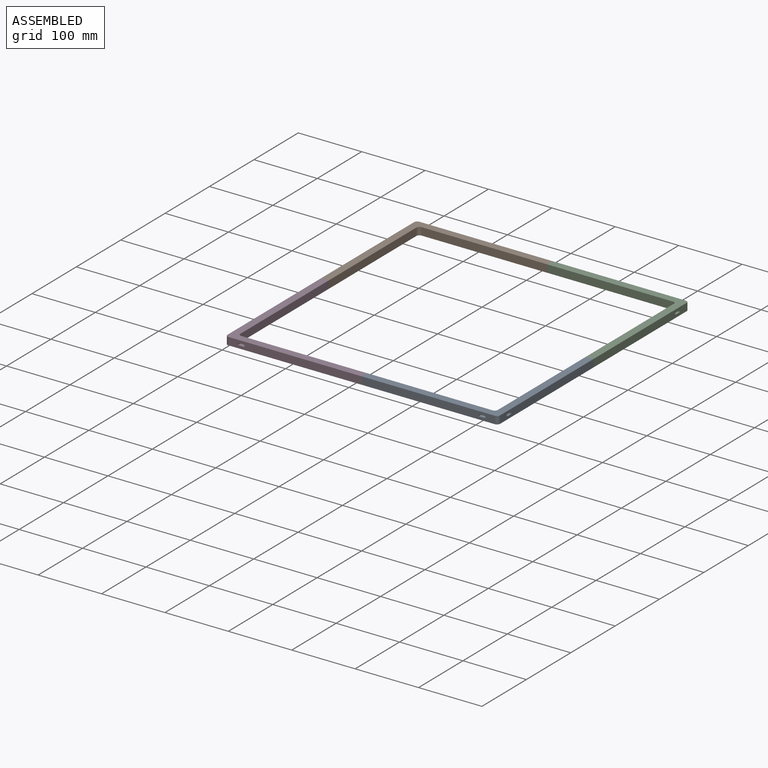
[diagram: assembled view]
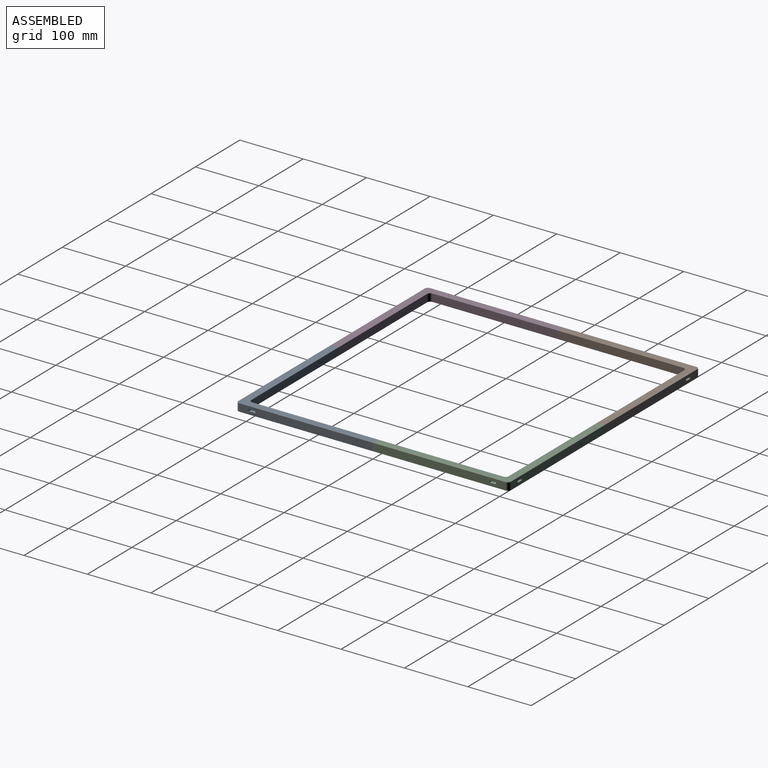
[diagram: assembled view, second angle]
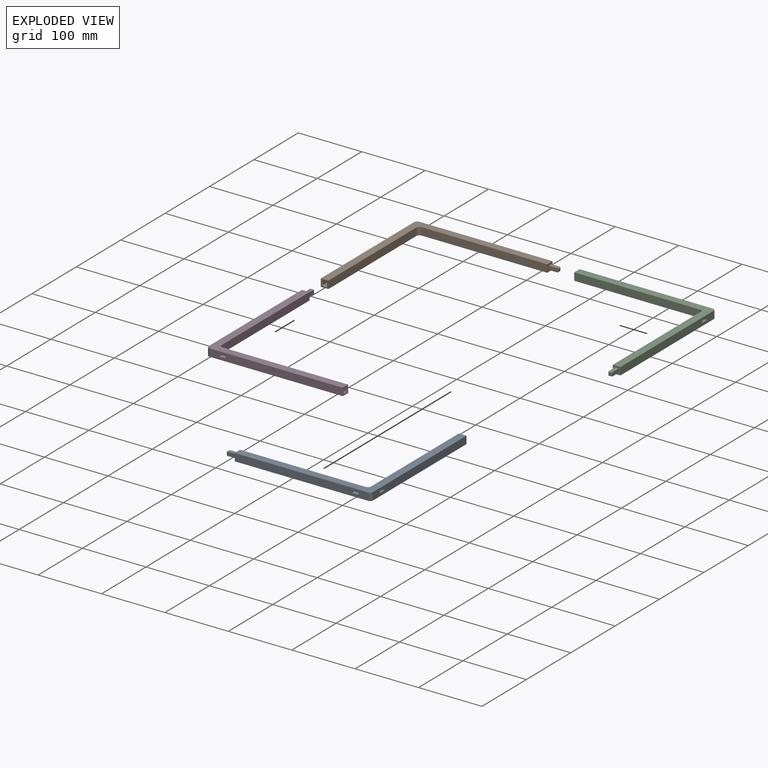
[diagram: exploded view]
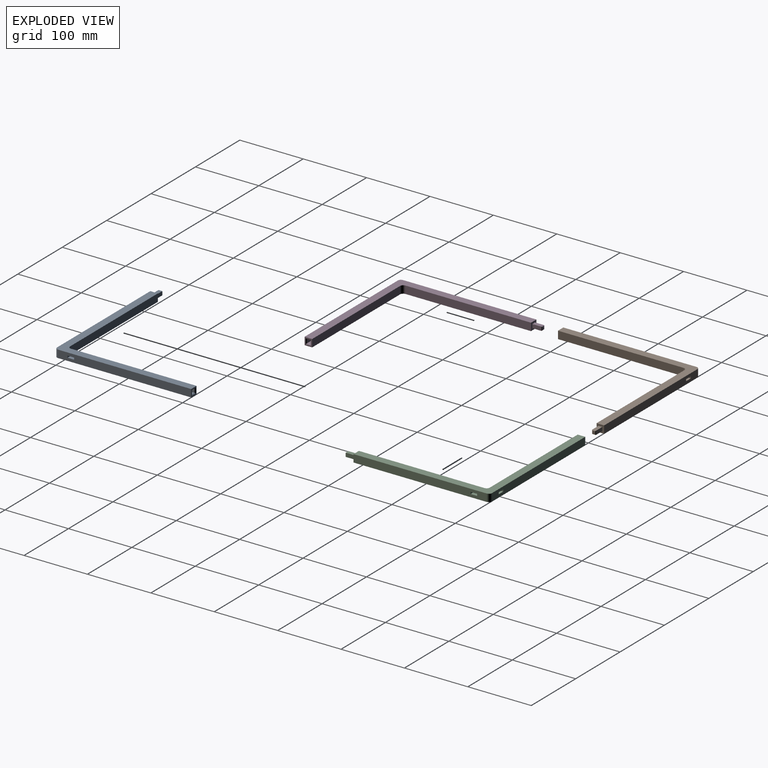
[diagram: exploded view, second angle]
ASSEMBLY  parts=4 mates=3
PART A: 38 faces, bbox 215x230x12 mm
  f0: plane 210x12mm, normal (-1,0,0), area 2489.1mm2, adj f1,f6,f7,f26,f28,f29,f30,f31
  f1: plane 12x12mm, normal (0,1,0), area 108mm2, adj f0,f5,f6,f7,f13,f14,f15,f16
  f2: plane 12x12mm, normal (1,0,0), area 75.9mm2, adj f3,f4,f6,f7,f22,f23,f24,f25
  f3: plane 210x12mm, normal (0,-1,0), area 2489.1mm2, adj f2,f6,f7,f26,f33,f34,f35,f36
  f4: plane 198x12mm, normal (0,1,0), area 2376mm2, adj f2,f6,f7,f27
  f5: plane 198x12mm, normal (1,0,0), area 2376mm2, adj f1,f6,f7,f27
  f6: plane 215x215mm, normal (0,0,1), area 5016mm2, adj f0,f1,f2,f3,f4,f5,f26,f27
  f7: plane 215x215mm, normal (0,0,-1), area 5016mm2, adj f0,f1,f2,f3,f4,f5,f26,f27
  f8: plane 14.2x6.25mm, normal (0,0,1), area 88.7mm2, adj f9,f11,f12,f25
  f9: plane 14.2x6.25mm, normal (0,-1,0), area 88.7mm2, adj f8,f10,f12,f23
  f10: plane 14.2x6.25mm, normal (0,0,-1), area 88.7mm2, adj f9,f11,f12,f22
  f11: plane 14.2x6.25mm, normal (0,1,0), area 88.7mm2, adj f8,f10,f12,f24
  f12: plane 6.25x6.25mm, normal (1,0,0), area 39.1mm2, adj f8,f9,f10,f11
  f13: plane 14x6mm, normal (1,0,0), area 84mm2, adj f1,f14,f16,f18
  f14: plane 14x6mm, normal (0,0,-1), area 84mm2, adj f1,f13,f15,f19
  f15: plane 14x6mm, normal (-1,0,0), area 84mm2, adj f1,f14,f16,f21
  f16: plane 14x6mm, normal (0,0,1), area 84mm2, adj f1,f13,f15,f20
  f17: plane 4x4mm, normal (0,1,0), area 16mm2, adj f18,f19,f20,f21
  f18: cylinder r=1mm len=6mm, axis (0,0,1), area 8.3mm2, adj f13,f17,f19,f20
  f19: cylinder r=1mm len=6mm, axis (1,0,0), area 8.3mm2, adj f14,f17,f18,f21
  f20: cylinder r=1mm len=6mm, axis (-1,0,0), area 8.3mm2, adj f16,f17,f18,f21
  f21: cylinder r=1mm len=6mm, axis (0,0,-1), area 8.3mm2, adj f15,f17,f19,f20
  f22: plane 8.25x1mm, normal (0.71,0,-0.71), area 10.3mm2, adj f2,f10,f23,f24
  f23: plane 8.25x1mm, normal (0.71,-0.71,0), area 10.3mm2, adj f2,f9,f22,f25
  f24: plane 8.25x1mm, normal (0.71,0.71,0), area 10.3mm2, adj f2,f11,f22,f25
  f25: plane 8.25x1mm, normal (0.71,0,0.71), area 10.3mm2, adj f2,f8,f23,f24
  f26: cylinder r=5mm len=12mm, axis (0,0,1), area 94.2mm2, adj f0,f3,f6,f7
  f27: cylinder r=5mm len=12mm, axis (0,0,-1), area 94.2mm2, adj f4,f5,f6,f7
  f28: plane 10x3mm, normal (0,-1,0), area 30mm2, adj f0,f29,f31,f32
  f29: plane 10.3x10mm, normal (0,0,1), area 103mm2, adj f0,f28,f30,f32
  f30: plane 10x3mm, normal (0,1,0), area 30mm2, adj f0,f29,f31,f32
  f31: plane 10.3x10mm, normal (0,0,-1), area 103mm2, adj f0,f28,f30,f32
  f32: plane 10.3x3mm, normal (-1,0,0), area 30.9mm2, adj f28,f29,f30,f31
  f33: plane 10x3mm, normal (-1,0,0), area 30mm2, adj f3,f34,f36,f37
  f34: plane 10.3x10mm, normal (0,0,-1), area 103mm2, adj f3,f33,f35,f37
  f35: plane 10x3mm, normal (1,0,0), area 30mm2, adj f3,f34,f36,f37
  f36: plane 10.3x10mm, normal (0,0,1), area 103mm2, adj f3,f33,f35,f37
  f37: plane 10.3x3mm, normal (0,-1,0), area 30.9mm2, adj f33,f34,f35,f36
PART B: same geometry as A
PART C: same geometry as A
PART D: same geometry as A
PLACE A rot(axis=(0,0,1),90deg) t=(324.87,-128.14,-8.1)mm
PLACE B rot(axis=(0,0,-1),90deg) t=(-105.13,301.86,-8.1)mm fixed
PLACE C rot(axis=(0,0,1),180deg) t=(324.87,301.86,-8.1)mm
PLACE D t=(-105.13,-128.14,-8.1)mm
MATE parallel C.f1 <-> A.f2  axis (0,-1,0) through (318.87,86.86,-2.1)mm
MATE parallel B.f2 <-> D.f1  axis (0,-1,0) through (-99.13,86.86,-2.1)mm
MATE parallel B.f1 <-> C.f2  axis (1,0,0) through (109.87,295.86,-2.1)mm
